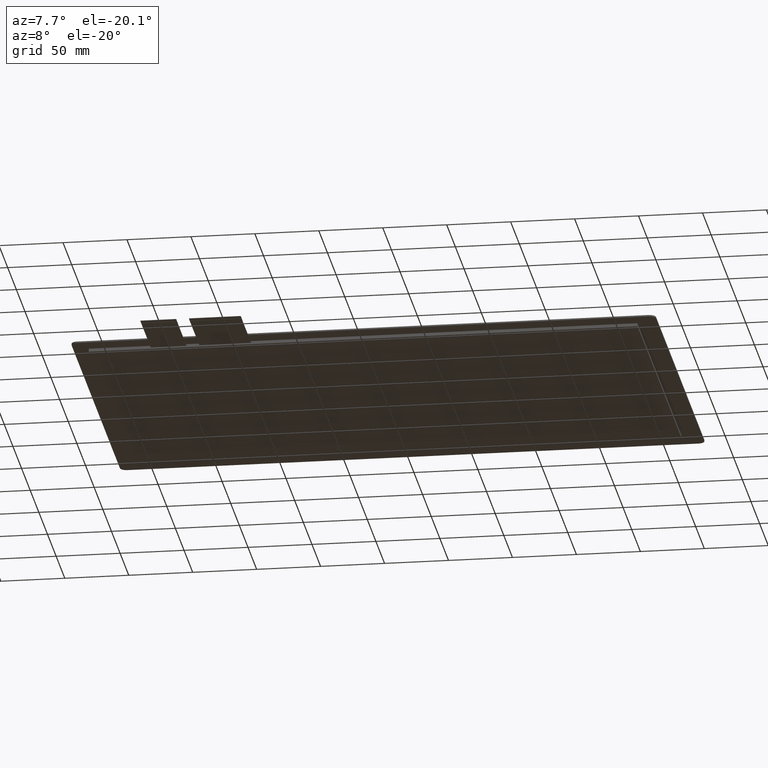
[diagram: clean part render]
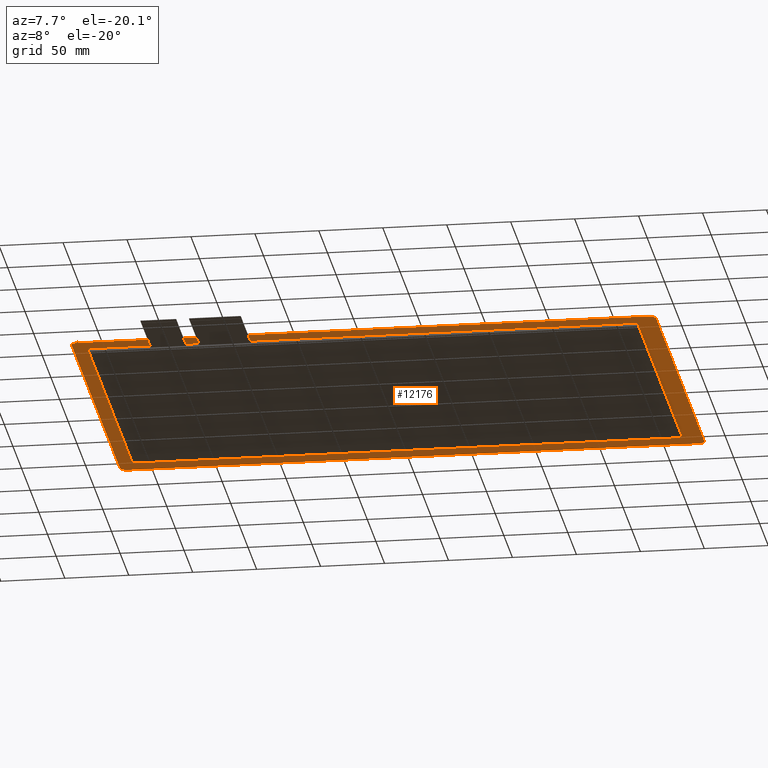
[diagram: same view with one face highlighted and labeled with its STEP entity id]
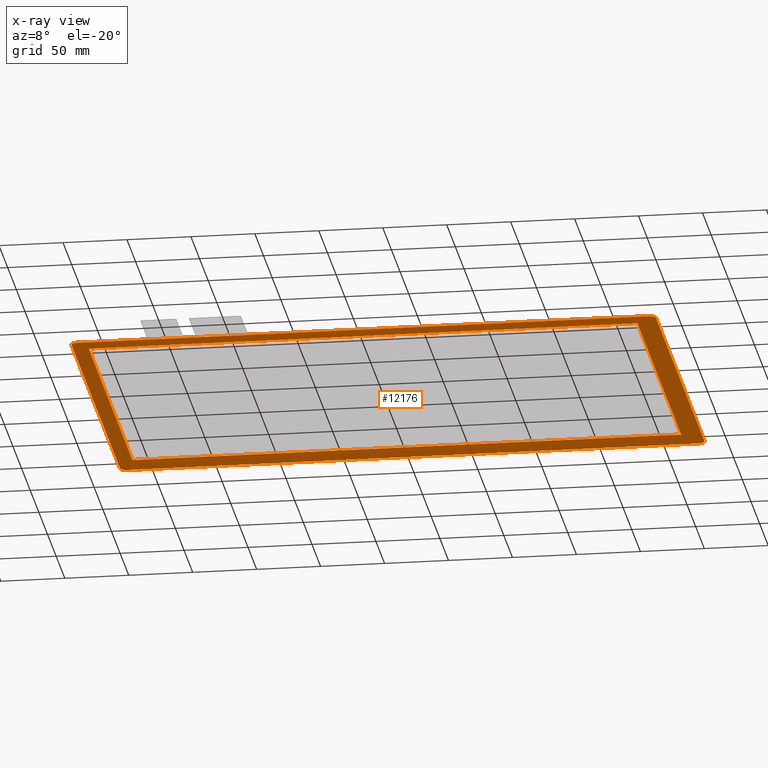
[diagram: x-ray of the same camera — body ghosted, the highlighted face saturated]
A machine part, auxiliary view. The second image highlights one B-rep face of the part: STEP entity #12176.
The next image is the same camera in x-ray: the body ghosted, the highlighted face saturated — about 0% of this face is hidden behind the body in this view.
In plain terms, the highlighted planar face has unit normal (0, 0, 1).
Its self-contained STEP definition (entity closure, byte-faithful):
#32=FACE_BOUND('',#1782,.T.);
#612=PLANE('',#12798);
#1196=FACE_OUTER_BOUND('',#1781,.T.);
#1781=EDGE_LOOP('',(#11523,#11524,#11525,#11526,#11527,#11528,#11529,#11530));
#1782=EDGE_LOOP('',(#11531,#11532,#11533,#11534));
#3475=LINE('',#19108,#5191);
#3485=LINE('',#19137,#5201);
#3489=LINE('',#19148,#5205);
#3490=LINE('',#19149,#5206);
#3491=LINE('',#19152,#5207);
#3492=LINE('',#19154,#5208);
#3493=LINE('',#19156,#5209);
#3494=LINE('',#19157,#5210);
#5191=VECTOR('',#15639,10.);
#5201=VECTOR('',#15663,10.);
#5205=VECTOR('',#15677,10.);
#5206=VECTOR('',#15678,10.);
#5207=VECTOR('',#15679,10.);
#5208=VECTOR('',#15680,10.);
#5209=VECTOR('',#15681,10.);
#5210=VECTOR('',#15682,10.);
#5240=CIRCLE('',#12785,5.);
#5244=CIRCLE('',#12792,5.);
#5245=CIRCLE('',#12795,5.);
#5246=CIRCLE('',#12797,5.);
#6369=VERTEX_POINT('',#19098);
#6370=VERTEX_POINT('',#19100);
#6372=VERTEX_POINT('',#19106);
#6382=VERTEX_POINT('',#19130);
#6383=VERTEX_POINT('',#19132);
#6384=VERTEX_POINT('',#19136);
#6385=VERTEX_POINT('',#19140);
#6386=VERTEX_POINT('',#19144);
#6387=VERTEX_POINT('',#19150);
#6388=VERTEX_POINT('',#19151);
#6389=VERTEX_POINT('',#19153);
#6390=VERTEX_POINT('',#19155);
#8085=EDGE_CURVE('',#6369,#6370,#5240,.T.);
#8089=EDGE_CURVE('',#6372,#6369,#3475,.T.);
#8101=EDGE_CURVE('',#6382,#6383,#5244,.T.);
#8103=EDGE_CURVE('',#6383,#6384,#3485,.T.);
#8105=EDGE_CURVE('',#6384,#6385,#5245,.T.);
#8108=EDGE_CURVE('',#6386,#6372,#5246,.T.);
#8109=EDGE_CURVE('',#6385,#6386,#3489,.T.);
#8110=EDGE_CURVE('',#6370,#6382,#3490,.T.);
#8111=EDGE_CURVE('',#6387,#6388,#3491,.T.);
#8112=EDGE_CURVE('',#6388,#6389,#3492,.T.);
#8113=EDGE_CURVE('',#6389,#6390,#3493,.T.);
#8114=EDGE_CURVE('',#6390,#6387,#3494,.T.);
#11523=ORIENTED_EDGE('',*,*,#8085,.F.);
#11524=ORIENTED_EDGE('',*,*,#8089,.F.);
#11525=ORIENTED_EDGE('',*,*,#8108,.F.);
#11526=ORIENTED_EDGE('',*,*,#8109,.F.);
#11527=ORIENTED_EDGE('',*,*,#8105,.F.);
#11528=ORIENTED_EDGE('',*,*,#8103,.F.);
#11529=ORIENTED_EDGE('',*,*,#8101,.F.);
#11530=ORIENTED_EDGE('',*,*,#8110,.F.);
#11531=ORIENTED_EDGE('',*,*,#8111,.T.);
#11532=ORIENTED_EDGE('',*,*,#8112,.T.);
#11533=ORIENTED_EDGE('',*,*,#8113,.T.);
#11534=ORIENTED_EDGE('',*,*,#8114,.T.);
#12176=ADVANCED_FACE('',(#1196,#32),#612,.F.);
#12785=AXIS2_PLACEMENT_3D('',#19101,#15632,#15633);
#12792=AXIS2_PLACEMENT_3D('',#19133,#15658,#15659);
#12795=AXIS2_PLACEMENT_3D('',#19141,#15667,#15668);
#12797=AXIS2_PLACEMENT_3D('',#19146,#15673,#15674);
#12798=AXIS2_PLACEMENT_3D('',#19147,#15675,#15676);
#15632=DIRECTION('center_axis',(0.,0.,1.));
#15633=DIRECTION('ref_axis',(0.707106781186547,0.707106781186547,0.));
#15639=DIRECTION('',(0.,1.,0.));
#15658=DIRECTION('center_axis',(0.,0.,1.));
#15659=DIRECTION('ref_axis',(-0.707106781186547,0.707106781186547,0.));
#15663=DIRECTION('',(1.22718952635596E-16,-1.,0.));
#15667=DIRECTION('center_axis',(0.,0.,1.));
#15668=DIRECTION('ref_axis',(-0.707106781186547,-0.707106781186547,0.));
#15673=DIRECTION('center_axis',(0.,0.,1.));
#15674=DIRECTION('ref_axis',(0.70710678118655,-0.707106781186545,0.));
#15675=DIRECTION('center_axis',(0.,0.,1.));
#15676=DIRECTION('ref_axis',(1.,0.,0.));
#15677=DIRECTION('',(1.,1.16635380131336E-16,0.));
#15678=DIRECTION('',(-1.,3.88784600437787E-17,0.));
#15679=DIRECTION('',(2.80292992410296E-16,-1.,0.));
#15680=DIRECTION('',(1.,1.24220758000017E-16,0.));
#15681=DIRECTION('',(0.,1.,0.));
#15682=DIRECTION('',(-1.,0.,0.));
#19098=CARTESIAN_POINT('',(228.45,139.75,0.));
#19100=CARTESIAN_POINT('',(223.45,144.75,0.));
#19101=CARTESIAN_POINT('Origin',(223.45,139.75,0.));
#19106=CARTESIAN_POINT('',(228.45,-139.75,0.));
#19108=CARTESIAN_POINT('',(228.45,-144.75,0.));
#19130=CARTESIAN_POINT('',(-223.45,144.75,0.));
#19132=CARTESIAN_POINT('',(-228.45,139.75,0.));
#19133=CARTESIAN_POINT('Origin',(-223.45,139.75,0.));
#19136=CARTESIAN_POINT('',(-228.45,-139.75,0.));
#19137=CARTESIAN_POINT('',(-228.45,144.75,0.));
#19140=CARTESIAN_POINT('',(-223.45,-144.75,0.));
#19141=CARTESIAN_POINT('Origin',(-223.45,-139.75,0.));
#19144=CARTESIAN_POINT('',(223.45,-144.75,0.));
#19146=CARTESIAN_POINT('Origin',(223.45,-139.75,0.));
#19147=CARTESIAN_POINT('Origin',(-8.88178419700125E-14,1.77635683940025E-14,
0.));
#19148=CARTESIAN_POINT('',(-228.45,-144.75,0.));
#19149=CARTESIAN_POINT('',(228.45,144.75,0.));
#19150=CARTESIAN_POINT('',(-216.3,123.,0.));
#19151=CARTESIAN_POINT('',(-216.3,-130.5,0.));
#19152=CARTESIAN_POINT('',(-216.3,123.,0.));
#19153=CARTESIAN_POINT('',(212.7,-130.5,0.));
#19154=CARTESIAN_POINT('',(-216.3,-130.5,0.));
#19155=CARTESIAN_POINT('',(212.7,123.,0.));
#19156=CARTESIAN_POINT('',(212.7,-130.5,0.));
#19157=CARTESIAN_POINT('',(212.7,123.,0.));